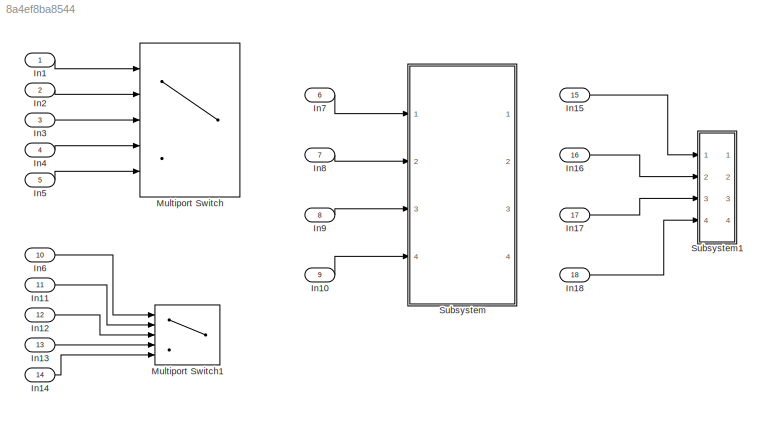
MODEL slx_8a4ef8ba8544
KIND model
BLOCK [Inport] In1
  IconDisplay = Port number
BLOCK [Inport] In10
  IconDisplay = Port number
  Port = 9
BLOCK [Inport] In11
  IconDisplay = Port number
  Port = 11
BLOCK [Inport] In12
  IconDisplay = Port number
  Port = 12
BLOCK [Inport] In13
  IconDisplay = Port number
  Port = 13
BLOCK [Inport] In14
  IconDisplay = Port number
  Port = 14
BLOCK [Inport] In15
  IconDisplay = Port number
  Port = 15
BLOCK [Inport] In16
  IconDisplay = Port number
  Port = 16
BLOCK [Inport] In17
  IconDisplay = Port number
  Port = 17
BLOCK [Inport] In18
  IconDisplay = Port number
  Port = 18
BLOCK [Inport] In2
  IconDisplay = Port number
  Port = 2
BLOCK [Inport] In3
  IconDisplay = Port number
  Port = 3
BLOCK [Inport] In4
  IconDisplay = Port number
  Port = 4
BLOCK [Inport] In5
  IconDisplay = Port number
  Port = 5
BLOCK [Inport] In6
  IconDisplay = Port number
  Port = 10
BLOCK [Inport] In7
  IconDisplay = Port number
  Port = 6
BLOCK [Inport] In8
  IconDisplay = Port number
  Port = 7
BLOCK [Inport] In9
  IconDisplay = Port number
  Port = 8
BLOCK [MultiPortSwitch] Multiport Switch
  InputSameDT = off
  Inputs = 4
  Ports = [5, 1]
  SaturateOnIntegerOverflow = off
BLOCK [MultiPortSwitch] Multiport Switch1
  InputSameDT = off
  Inputs = 4
  Ports = [5, 1]
  SaturateOnIntegerOverflow = off
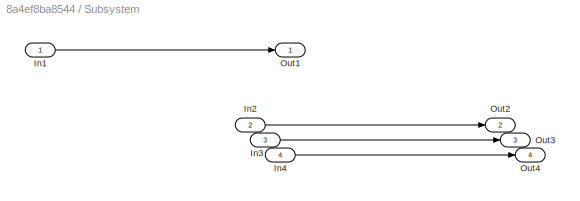
BLOCK [SubSystem] Subsystem
  Ports = [4, 4]
  RequestExecContextInheritance = off
BLOCK [Inport] Subsystem/In1
  IconDisplay = Port number
BLOCK [Inport] Subsystem/In2
  IconDisplay = Port number
  Port = 2
BLOCK [Inport] Subsystem/In3
  IconDisplay = Port number
  Port = 3
BLOCK [Inport] Subsystem/In4
  IconDisplay = Port number
  Port = 4
BLOCK [Outport] Subsystem/Out1
  IconDisplay = Port number
BLOCK [Outport] Subsystem/Out2
  IconDisplay = Port number
  Port = 2
BLOCK [Outport] Subsystem/Out3
  IconDisplay = Port number
  Port = 3
BLOCK [Outport] Subsystem/Out4
  IconDisplay = Port number
  Port = 4
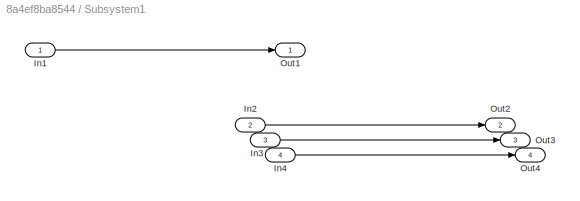
BLOCK [SubSystem] Subsystem1
  Ports = [4, 4]
  RequestExecContextInheritance = off
BLOCK [Inport] Subsystem1/In1
  IconDisplay = Port number
BLOCK [Inport] Subsystem1/In2
  IconDisplay = Port number
  Port = 2
BLOCK [Inport] Subsystem1/In3
  IconDisplay = Port number
  Port = 3
BLOCK [Inport] Subsystem1/In4
  IconDisplay = Port number
  Port = 4
BLOCK [Outport] Subsystem1/Out1
  IconDisplay = Port number
BLOCK [Outport] Subsystem1/Out2
  IconDisplay = Port number
  Port = 2
BLOCK [Outport] Subsystem1/Out3
  IconDisplay = Port number
  Port = 3
BLOCK [Outport] Subsystem1/Out4
  IconDisplay = Port number
  Port = 4
LINE In10:1 -> Subsystem:4
LINE In11:1 -> Multiport Switch1:2
LINE In12:1 -> Multiport Switch1:3
LINE In13:1 -> Multiport Switch1:4
LINE In14:1 -> Multiport Switch1:5
LINE In15:1 -> Subsystem1:1
LINE In16:1 -> Subsystem1:2
LINE In17:1 -> Subsystem1:3
LINE In18:1 -> Subsystem1:4
LINE In1:1 -> Multiport Switch:1
LINE In2:1 -> Multiport Switch:2
LINE In3:1 -> Multiport Switch:3
LINE In4:1 -> Multiport Switch:4
LINE In5:1 -> Multiport Switch:5
LINE In6:1 -> Multiport Switch1:1
LINE In7:1 -> Subsystem:1
LINE In8:1 -> Subsystem:2
LINE In9:1 -> Subsystem:3
LINE Subsystem/In1:1 -> Subsystem/Out1:1
LINE Subsystem/In2:1 -> Subsystem/Out2:1
LINE Subsystem/In3:1 -> Subsystem/Out3:1
LINE Subsystem/In4:1 -> Subsystem/Out4:1
LINE Subsystem1/In1:1 -> Subsystem1/Out1:1
LINE Subsystem1/In2:1 -> Subsystem1/Out2:1
LINE Subsystem1/In3:1 -> Subsystem1/Out3:1
LINE Subsystem1/In4:1 -> Subsystem1/Out4:1
